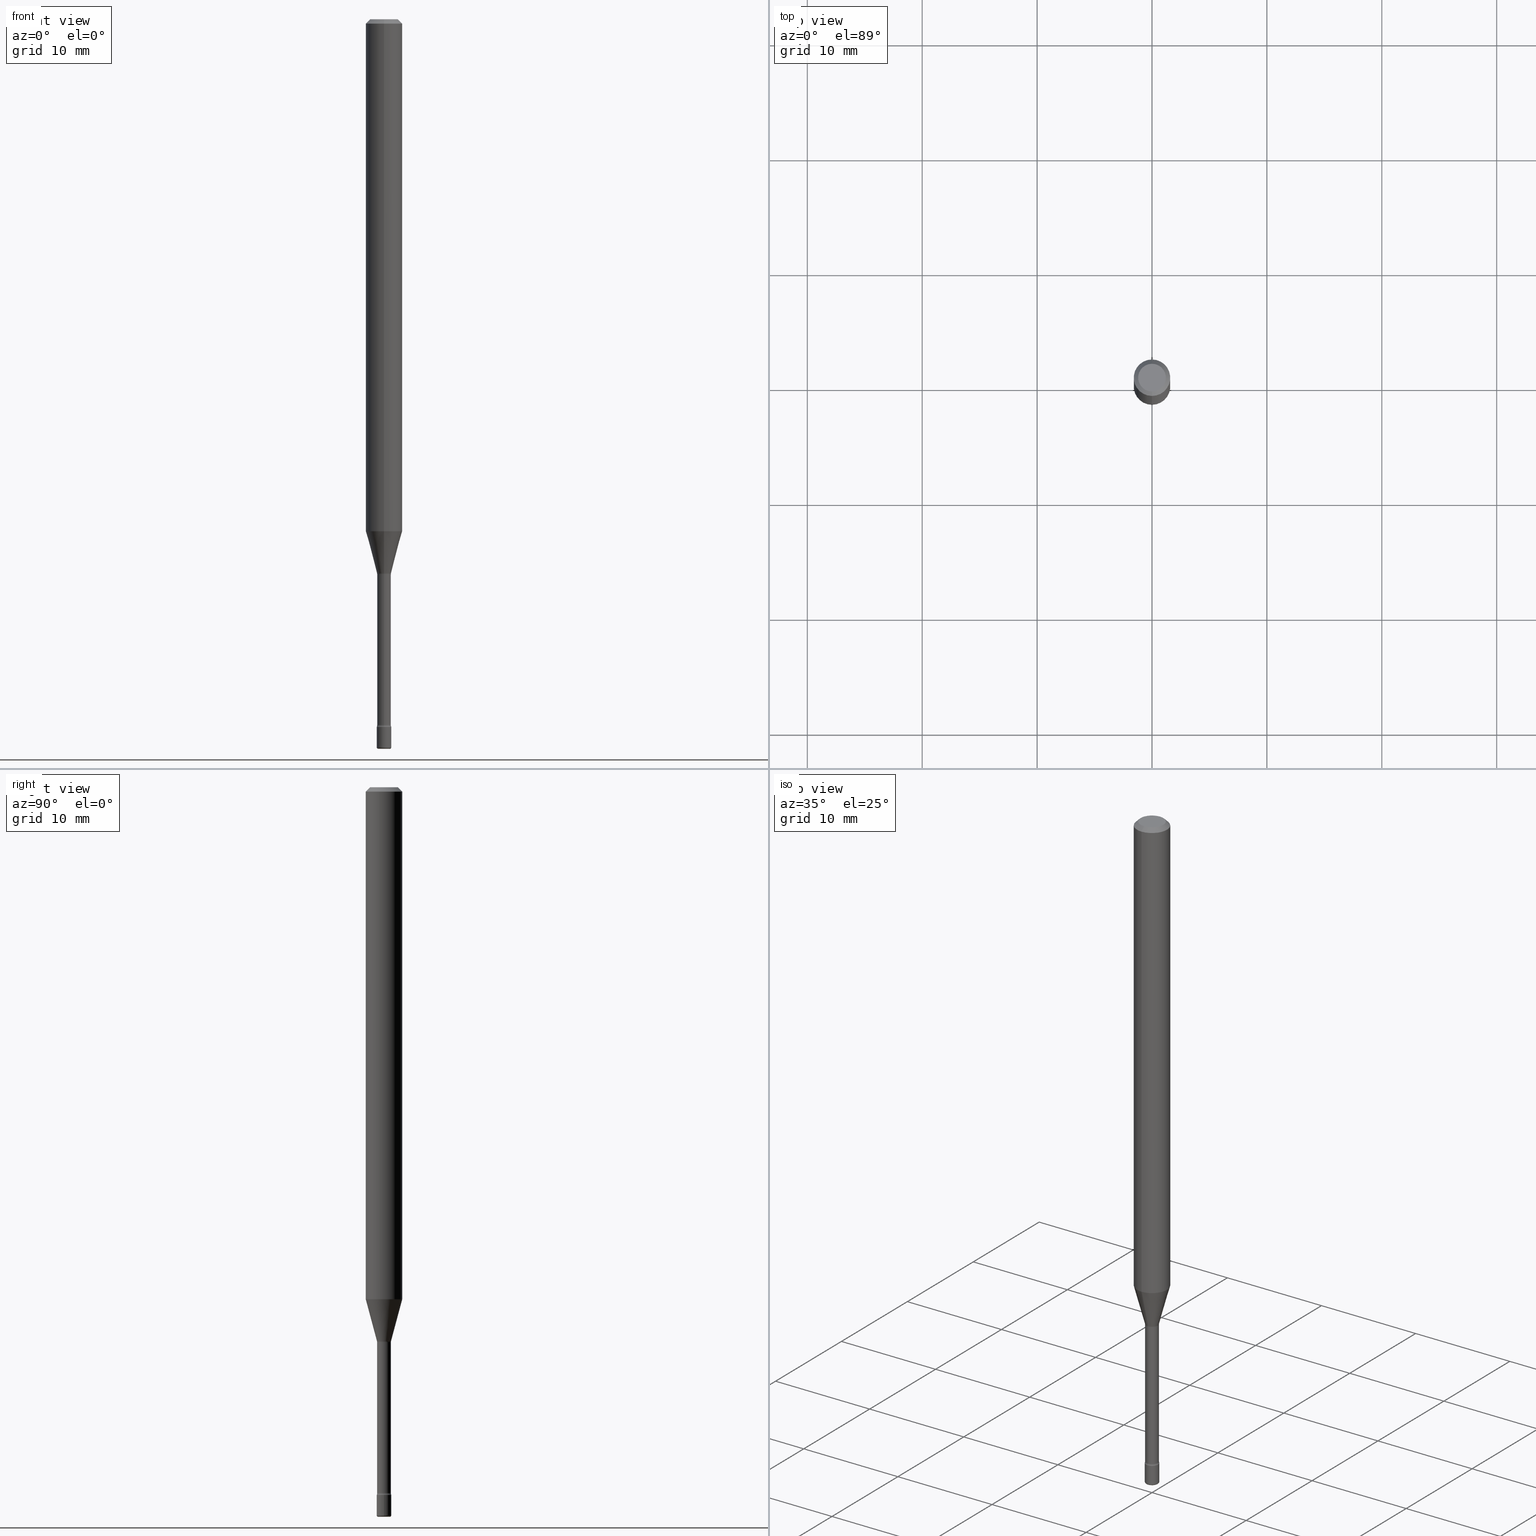
[diagram: canonical four-view strip — front | top / right | iso, engineering-drawing reading convention]
A machine part, canonical four-view strip (front | top / right | iso — engineering-drawing reading convention). The complete STEP part file that produces these views, byte-faithful:
ISO-10303-21;
HEADER;
FILE_DESCRIPTION (( 'STEP AP203' ),
    '1' );
FILE_NAME ('08916.STEP',
    '2024-03-06T20:10:56',
    ( '' ),
    ( '' ),
    'SwSTEP 2.0',
    'SolidWorks 2023',
    '' );
FILE_SCHEMA (( 'CONFIG_CONTROL_DESIGN' ));
ENDSEC;

DATA;
#1 = DIRECTION ( 'NONE',  ( -2.445468806185136597E-29, 3.491481338843145583E-15, 1.000000000000000000 ) ) ;
#2 = CYLINDRICAL_SURFACE ( 'NONE', #528, 0.02350000000000000352 ) ;
#3 = EDGE_CURVE ( 'NONE', #519, #570, #496, .T. ) ;
#4 = ORIENTED_EDGE ( 'NONE', *, *, #15, .F. ) ;
#5 = AXIS2_PLACEMENT_3D ( 'NONE', #243, #486, #402 ) ;
#6 = CC_DESIGN_APPROVAL ( #295, ( #188 ) ) ;
#7 = ORIENTED_EDGE ( 'NONE', *, *, #349, .T. ) ;
#8 = DIRECTION ( 'NONE',  ( -2.445403387377062590E-29, 3.491575022299715255E-15, 1.000000000000000000 ) ) ;
#9 = EDGE_CURVE ( 'NONE', #522, #378, #468, .T. ) ;
#10 = DIRECTION ( 'NONE',  ( 1.000000000000000000, -6.982962677686295110E-15, 0.000000000000000000 ) ) ;
#11 = CARTESIAN_POINT ( 'NONE',  ( 4.440892098501058063E-16, 0.06249999999999995143, -0.01500000000000024578 ) ) ;
#12 = EDGE_LOOP ( 'NONE', ( #173, #142 ) ) ;
#13 = CIRCLE ( 'NONE', #55, 0.04749999999999998668 ) ;
#15 = EDGE_CURVE ( 'NONE', #53, #182, #505, .T. ) ;
#14 = DIRECTION ( 'NONE',  ( 1.000000000000000000, -6.982962677686295110E-15, 0.000000000000000000 ) ) ;
#16 = VECTOR ( 'NONE', #331, 39.37007874015748143 ) ;
#17 = DIRECTION ( 'NONE',  ( -6.982962677686266711E-15, -1.000000000000000000, 3.491575022299714860E-15 ) ) ;
#18 = EDGE_CURVE ( 'NONE', #86, #570, #488, .T. ) ;
#19 = DIRECTION ( 'NONE',  ( -2.445403387377062590E-29, 3.491575022299714860E-15, 1.000000000000000000 ) ) ;
#20 = FACE_OUTER_BOUND ( 'NONE', #12, .T. ) ;
#21 = EDGE_CURVE ( 'NONE', #523, #519, #356, .T. ) ;
#22 = FACE_OUTER_BOUND ( 'NONE', #345, .T. ) ;
#23 = CARTESIAN_POINT ( 'NONE',  ( 6.101444671431915719E-29, -8.711245940413648329E-15, -2.495000000000000107 ) ) ;
#24 = APPLICATION_PROTOCOL_DEFINITION ( 'international standard', 'config_control_design', 1994, #183 ) ;
#25 = DATE_AND_TIME ( #45, #471 ) ;
#26 = CARTESIAN_POINT ( 'NONE',  ( 5.930103214389377510E-29, -8.467069429076808556E-15, -2.425000000000000266 ) ) ;
#27 = AXIS2_PLACEMENT_3D ( 'NONE', #262, #425, #40 ) ;
#28 = CC_DESIGN_APPROVAL ( #51, ( #398 ) ) ;
#29 = FACE_OUTER_BOUND ( 'NONE', #219, .T. ) ;
#30 = CC_DESIGN_DATE_AND_TIME_ASSIGNMENT ( #392, #477, ( #250 ) ) ;
#31 = PERSON_AND_ORGANIZATION ( #436, #497 ) ;
#32 = DIRECTION ( 'NONE',  ( 6.982962677686265922E-15, 1.000000000000000000, -3.483106191921935554E-15 ) ) ;
#33 = EDGE_CURVE ( 'NONE', #424, #59, #458, .T. ) ;
#34 = DIRECTION ( 'NONE',  ( -6.982962677686265922E-15, -1.000000000000000000, 0.000000000000000000 ) ) ;
#35 = CARTESIAN_POINT ( 'NONE',  ( 4.290338018235424187E-29, -6.125793862484683661E-15, -1.754450018504814635 ) ) ;
#36 = ORIENTED_EDGE ( 'NONE', *, *, #475, .F. ) ;
#37 = CARTESIAN_POINT ( 'NONE',  ( -4.287811248607203282E-16, -0.06250000000000005551, -0.01499999999999981036 ) ) ;
#38 = EDGE_LOOP ( 'NONE', ( #379, #44, #90, #36 ) ) ;
#39 = CARTESIAN_POINT ( 'NONE',  ( 1.706092163947695036E-16, 0.02401111260565735178, -1.898092501787273401 ) ) ;
#40 = DIRECTION ( 'NONE',  ( 1.000000000000000000, -6.982962677686265922E-15, 4.876176775795936353E-29 ) ) ;
#41 = MANIFOLD_SOLID_BREP ( 'Body-Move/Copy2[2]', #159 ) ;
#42 = PRODUCT ( '08916', '08916', '', ( #537 ) ) ;
#43 = ORIENTED_EDGE ( 'NONE', *, *, #111, .T. ) ;
#44 = ORIENTED_EDGE ( 'NONE', *, *, #410, .T. ) ;
#45 = CALENDAR_DATE ( 2024, 6, 3 ) ;
#46 = CIRCLE ( 'NONE', #403, 0.02499999999999999792 ) ;
#47 = TOROIDAL_SURFACE ( 'NONE', #288, 0.02000000000000000042, 0.005000000000000040870 ) ;
#48 = DIRECTION ( 'NONE',  ( -2.445468806185136597E-29, 3.491481338843145583E-15, 1.000000000000000000 ) ) ;
#49 = ORIENTED_EDGE ( 'NONE', *, *, #554, .F. ) ;
#50 = ORIENTED_EDGE ( 'NONE', *, *, #298, .T. ) ;
#51 = APPROVAL ( #137, 'UNSPECIFIED' ) ;
#52 = DIRECTION ( 'NONE',  ( -6.982962677686265922E-15, -1.000000000000000000, 3.491575022299715255E-15 ) ) ;
#53 = VERTEX_POINT ( 'NONE', #240 ) ;
#54 = PRODUCT_RELATED_PRODUCT_CATEGORY ( 'detail', '', ( #42 ) ) ;
#55 = AXIS2_PLACEMENT_3D ( 'NONE', #409, #283, #449 ) ;
#56 = AXIS2_PLACEMENT_3D ( 'NONE', #426, #266, #263 ) ;
#57 = CARTESIAN_POINT ( 'NONE',  ( 2.735589532676978805E-16, 0.03849999999999158956, -2.418461651584689065 ) ) ;
#58 = EDGE_CURVE ( 'NONE', #523, #86, #293, .T. ) ;
#59 = VERTEX_POINT ( 'NONE', #112 ) ;
#60 = AXIS2_PLACEMENT_3D ( 'NONE', #490, #107, #357 ) ;
#61 = DIRECTION ( 'NONE',  ( -6.982962677686265922E-15, -1.000000000000000000, 3.483106191921935554E-15 ) ) ;
#62 = LINE ( 'NONE', #455, #81 ) ;
#63 = CC_DESIGN_PERSON_AND_ORGANIZATION_ASSIGNMENT ( #146, #314, ( #398 ) ) ;
#64 = APPROVAL_DATE_TIME ( #209, #295 ) ;
#65 = ORIENTED_EDGE ( 'NONE', *, *, #464, .F. ) ;
#66 = FACE_OUTER_BOUND ( 'NONE', #311, .T. ) ;
#67 = EDGE_CURVE ( 'NONE', #222, #318, #236, .T. ) ;
#68 = DIRECTION ( 'NONE',  ( -2.445403387377062590E-29, 3.491575022299714860E-15, 1.000000000000000000 ) ) ;
#69 = ADVANCED_FACE ( 'NONE', ( #162 ), #535, .T. ) ;
#70 = AXIS2_PLACEMENT_3D ( 'NONE', #251, #334, #372 ) ;
#71 = APPROVAL_DATE_TIME ( #25, #51 ) ;
#72 = AXIS2_PLACEMENT_3D ( 'NONE', #26, #177, #121 ) ;
#73 = LOCAL_TIME ( 15, 10, 56.00000000000000000, #91 ) ;
#74 = DIRECTION ( 'NONE',  ( 1.000000000000000000, -7.105427357601001070E-15, 4.926316655833534240E-29 ) ) ;
#75 = DIRECTION ( 'NONE',  ( -6.982962677686265922E-15, -1.000000000000000000, 3.483106191921935554E-15 ) ) ;
#76 = DIRECTION ( 'NONE',  ( -6.982962677686265133E-15, -1.000000000000000000, 0.000000000000000000 ) ) ;
#77 = UNCERTAINTY_MEASURE_WITH_UNIT (LENGTH_MEASURE( 1.000000000000000082E-05 ), #338, 'distance_accuracy_value', 'NONE');
#78 = CARTESIAN_POINT ( 'NONE',  ( 3.840629472727447874E-16, 0.04749999999999998668, -1.929345507921888436E-16 ) ) ;
#79 = CARTESIAN_POINT ( 'NONE',  ( 6.113672015462842613E-29, -8.728703347107864943E-15, -2.500000000000000000 ) ) ;
#80 = ORIENTED_EDGE ( 'NONE', *, *, #444, .F. ) ;
#81 = VECTOR ( 'NONE', #324, 39.37007874015748143 ) ;
#82 = AXIS2_PLACEMENT_3D ( 'NONE', #320, #442, #14 ) ;
#83 = CARTESIAN_POINT ( 'NONE',  ( -1.169113584055446105E-44, 1.669184350826100908E-30, 4.780733988912460139E-16 ) ) ;
#84 = LOCAL_TIME ( 15, 10, 56.00000000000000000, #109 ) ;
#85 = FACE_OUTER_BOUND ( 'NONE', #38, .T. ) ;
#86 = VERTEX_POINT ( 'NONE', #199 ) ;
#87 = SHAPE_DEFINITION_REPRESENTATION ( #139, #165 ) ;
#88 = ORIENTED_EDGE ( 'NONE', *, *, #475, .T. ) ;
#89 = CARTESIAN_POINT ( 'NONE',  ( 4.651220012893355916E-29, -6.640709477380055554E-15, -1.901974787463811323 ) ) ;
#90 = ORIENTED_EDGE ( 'NONE', *, *, #58, .F. ) ;
#92 = ADVANCED_FACE ( 'NONE', ( #197 ), #397, .F. ) ;
#91 = COORDINATED_UNIVERSAL_TIME_OFFSET ( 5, 0, .BEHIND. ) ;
#93 = ORIENTED_EDGE ( 'NONE', *, *, #432, .T. ) ;
#94 = ORIENTED_EDGE ( 'NONE', *, *, #254, .T. ) ;
#95 = SECURITY_CLASSIFICATION_LEVEL ( 'unclassified' ) ;
#96 = ORIENTED_EDGE ( 'NONE', *, *, #298, .F. ) ;
#97 = EDGE_CURVE ( 'NONE', #182, #53, #46, .T. ) ;
#98 = AXIS2_PLACEMENT_3D ( 'NONE', #450, #19, #205 ) ;
#99 = CARTESIAN_POINT ( 'NONE',  ( 1.745740669422159556E-16, 0.02499999999999153247, -2.425000000000000266 ) ) ;
#100 = ORIENTED_EDGE ( 'NONE', *, *, #9, .T. ) ;
#101 = CALENDAR_DATE ( 2024, 6, 3 ) ;
#102 = EDGE_LOOP ( 'NONE', ( #303, #307, #4, #216 ) ) ;
#103 = EDGE_CURVE ( 'NONE', #473, #175, #373, .T. ) ;
#104 = AXIS2_PLACEMENT_3D ( 'NONE', #289, #363, #546 ) ;
#105 = TOROIDAL_SURFACE ( 'NONE', #452, 0.03850000000000002726, 0.01500000000000003067 ) ;
#106 = CARTESIAN_POINT ( 'NONE',  ( -4.364351673553916201E-16, -0.06250000000000000000, 6.962968377849783406E-16 ) ) ;
#107 = DIRECTION ( 'NONE',  ( -2.445403387377062590E-29, 3.491575022299714860E-15, 1.000000000000000000 ) ) ;
#108 = CARTESIAN_POINT ( 'NONE',  ( -1.745740669420974785E-16, -0.02500000000000848419, -2.425000000000000266 ) ) ;
#109 = COORDINATED_UNIVERSAL_TIME_OFFSET ( 5, 0, .BEHIND. ) ;
#110 = DIRECTION ( 'NONE',  ( -2.445403387377062590E-29, 3.491575022299715255E-15, 1.000000000000000000 ) ) ;
#111 = EDGE_CURVE ( 'NONE', #53, #59, #62, .T. ) ;
#112 = CARTESIAN_POINT ( 'NONE',  ( 0.02500000000000000139, -8.641416313636785031E-15, -2.425000000000000266 ) ) ;
#113 = AXIS2_PLACEMENT_3D ( 'NONE', #541, #370, #544 ) ;
#114 = DIRECTION ( 'NONE',  ( -2.438088387897960049E-29, 3.491481338843145188E-15, 1.000000000000000000 ) ) ;
#115 = DIRECTION ( 'NONE',  ( 1.000000000000000000, -7.105427357601001070E-15, 4.926316655833534240E-29 ) ) ;
#116 = ADVANCED_FACE ( 'NONE', ( #362 ), #158, .T. ) ;
#117 = APPROVAL_STATUS ( 'not_yet_approved' ) ;
#118 = CARTESIAN_POINT ( 'NONE',  ( 5.914114315026723309E-29, -8.444240295062814699E-15, -2.418461651584689065 ) ) ;
#119 = PERSON_AND_ORGANIZATION_ROLE ( 'creator' ) ;
#120 = AXIS2_PLACEMENT_3D ( 'NONE', #453, #498, #548 ) ;
#121 = DIRECTION ( 'NONE',  ( -6.982962677686265133E-15, -1.000000000000000000, 0.000000000000000000 ) ) ;
#122 = AXIS2_PLACEMENT_3D ( 'NONE', #504, #461, #75 ) ;
#123 = CARTESIAN_POINT ( 'NONE',  ( 4.641601833425601729E-29, -6.627332369254820611E-15, -1.898092501787273401 ) ) ;
#124 = ADVANCED_FACE ( 'NONE', ( #20 ), #282, .T. ) ;
#125 = CARTESIAN_POINT ( 'NONE',  ( -0.02500000000000000139, -8.411408409614115509E-15, -2.425000000000000266 ) ) ;
#126 = FACE_OUTER_BOUND ( 'NONE', #466, .T. ) ;
#127 = ORIENTED_EDGE ( 'NONE', *, *, #280, .T. ) ;
#128 = EDGE_CURVE ( 'NONE', #376, #391, #201, .T. ) ;
#129 = DIRECTION ( 'NONE',  ( -6.982962677686267499E-15, -1.000000000000000000, 0.000000000000000000 ) ) ;
#130 = PLANE ( 'NONE',  #423 ) ;
#131 = ORIENTED_EDGE ( 'NONE', *, *, #361, .F. ) ;
#132 = ORIENTED_EDGE ( 'NONE', *, *, #319, .F. ) ;
#133 = AXIS2_PLACEMENT_3D ( 'NONE', #35, #336, #509 ) ;
#134 = DIRECTION ( 'NONE',  ( -6.982962677686265133E-15, -1.000000000000000000, 0.000000000000000000 ) ) ;
#135 = CARTESIAN_POINT ( 'NONE',  ( 5.930103214389377510E-29, -8.467069429076808556E-15, -2.425000000000000266 ) ) ;
#136 = EDGE_LOOP ( 'NONE', ( #143, #259, #88, #325 ) ) ;
#137 = APPROVAL_STATUS ( 'not_yet_approved' ) ;
#138 = APPROVAL ( #117, 'UNSPECIFIED' ) ;
#139 = PRODUCT_DEFINITION_SHAPE ( 'NONE', 'NONE',  #188 ) ;
#140 = CARTESIAN_POINT ( 'NONE',  ( -4.364351673553912750E-16, -0.06250000000000005551, -0.01499999999999981036 ) ) ;
#141 = ADVANCED_FACE ( 'NONE', ( #400 ), #245, .F. ) ;
#142 = ORIENTED_EDGE ( 'NONE', *, *, #33, .T. ) ;
#143 = ORIENTED_EDGE ( 'NONE', *, *, #410, .F. ) ;
#144 = DIRECTION ( 'NONE',  ( -2.445403387377062590E-29, 3.491575022299714860E-15, 1.000000000000000000 ) ) ;
#145 = ORIENTED_EDGE ( 'NONE', *, *, #439, .T. ) ;
#146 = PERSON_AND_ORGANIZATION ( #436, #497 ) ;
#147 = CONICAL_SURFACE ( 'NONE', #451, 0.02401111260566398189, 0.2617993877991502960 ) ;
#148 = VECTOR ( 'NONE', #169, 39.37007874015748143 ) ;
#149 = FACE_OUTER_BOUND ( 'NONE', #495, .T. ) ;
#150 = APPLICATION_PROTOCOL_DEFINITION ( 'international standard', 'config_control_design', 1994, #210 ) ;
#151 = DIRECTION ( 'NONE',  ( 1.000000000000000000, -6.982962677686282488E-15, 4.883557194083118506E-29 ) ) ;
#152 = AXIS2_PLACEMENT_3D ( 'NONE', #557, #258, #553 ) ;
#153 = AXIS2_PLACEMENT_3D ( 'NONE', #99, #273, #52 ) ;
#154 = DIRECTION ( 'NONE',  ( 1.000000000000000000, -6.982962677686282488E-15, 4.883557194083118506E-29 ) ) ;
#155 = CC_DESIGN_PERSON_AND_ORGANIZATION_ASSIGNMENT ( #31, #119, ( #188 ) ) ;
#156 = ORIENTED_EDGE ( 'NONE', *, *, #241, .F. ) ;
#157 = DIRECTION ( 'NONE',  ( -6.982962677686265922E-15, -1.000000000000000000, 0.000000000000000000 ) ) ;
#158 = CYLINDRICAL_SURFACE ( 'NONE', #358, 0.02499999999999999792 ) ;
#159 = CLOSED_SHELL ( 'NONE', ( #92, #536, #141, #223, #230, #508, #215, #69, #417, #234, #533, #484, #315, #529 ) ) ;
#160 = FACE_OUTER_BOUND ( 'NONE', #310, .T. ) ;
#161 = CIRCLE ( 'NONE', #279, 0.02401111260566398189 ) ;
#162 = FACE_OUTER_BOUND ( 'NONE', #472, .T. ) ;
#163 = APPROVAL_PERSON_ORGANIZATION ( #457, #51, #366 ) ;
#164 = CARTESIAN_POINT ( 'NONE',  ( 5.930261854998957144E-29, -8.466842246694628363E-15, -2.425000000000000266 ) ) ;
#165 = ADVANCED_BREP_SHAPE_REPRESENTATION ( '08916', ( #221, #41, #483 ), #443 ) ;
#166 = DATE_AND_TIME ( #569, #73 ) ;
#167 = CARTESIAN_POINT ( 'NONE',  ( 1.669775429036235194E-16, 0.02350000000000000352, 3.960213858672027518E-16 ) ) ;
#168 = FACE_OUTER_BOUND ( 'NONE', #136, .T. ) ;
#169 = DIRECTION ( 'NONE',  ( -2.445403387377062590E-29, 3.491575022299715255E-15, 1.000000000000000000 ) ) ;
#170 = CARTESIAN_POINT ( 'NONE',  ( -1.640996229256272766E-16, -0.02350000000000000352, 5.601254119152893254E-16 ) ) ;
#171 = CIRCLE ( 'NONE', #556, 0.01500000000000001853 ) ;
#172 = DIRECTION ( 'NONE',  ( -2.445403387377062590E-29, 3.491575022299714860E-15, 1.000000000000000000 ) ) ;
#173 = ORIENTED_EDGE ( 'NONE', *, *, #531, .T. ) ;
#174 = LENGTH_MEASURE_WITH_UNIT ( LENGTH_MEASURE( 0.02539999999999999897 ), #374 );
#175 = VERTEX_POINT ( 'NONE', #540 ) ;
#176 = ADVANCED_FACE ( 'NONE', ( #543 ), #302, .T. ) ;
#177 = DIRECTION ( 'NONE',  ( -2.445403387377062590E-29, 3.491575022299714860E-15, 1.000000000000000000 ) ) ;
#178 = LINE ( 'NONE', #37, #246 ) ;
#179 = ORIENTED_EDGE ( 'NONE', *, *, #3, .F. ) ;
#180 = DIRECTION ( 'NONE',  ( 1.000000000000000000, -6.982962677686284065E-15, 0.000000000000000000 ) ) ;
#181 = FACE_OUTER_BOUND ( 'NONE', #520, .T. ) ;
#182 = VERTEX_POINT ( 'NONE', #492 ) ;
#183 = APPLICATION_CONTEXT ( 'configuration controlled 3d designs of mechanical parts and assemblies' ) ;
#184 = ORIENTED_EDGE ( 'NONE', *, *, #97, .F. ) ;
#185 = AXIS2_PLACEMENT_3D ( 'NONE', #23, #291, #154 ) ;
#186 = CIRCLE ( 'NONE', #304, 0.02500000000000000139 ) ;
#187 = CARTESIAN_POINT ( 'NONE',  ( 1.776356839400844428E-16, 0.02499999999999155328, -2.425000000000000266 ) ) ;
#188 = PRODUCT_DEFINITION ( 'UNKNOWN', '', #398, #252 ) ;
#189 = EDGE_LOOP ( 'NONE', ( #233, #145, #274, #156 ) ) ;
#190 = ORIENTED_EDGE ( 'NONE', *, *, #103, .F. ) ;
#191 = DIRECTION ( 'NONE',  ( -2.445403387377062590E-29, 3.491575022299714860E-15, 1.000000000000000000 ) ) ;
#192 = AXIS2_PLACEMENT_3D ( 'NONE', #456, #68, #494 ) ;
#193 = CIRCLE ( 'NONE', #322, 0.02500000000000000139 ) ;
#194 = ORIENTED_EDGE ( 'NONE', *, *, #277, .T. ) ;
#195 = VERTEX_POINT ( 'NONE', #108 ) ;
#196 = EDGE_CURVE ( 'NONE', #175, #473, #13, .T. ) ;
#197 = FACE_OUTER_BOUND ( 'NONE', #267, .T. ) ;
#198 = CARTESIAN_POINT ( 'NONE',  ( 0.000000000000000000, 0.000000000000000000, 0.000000000000000000 ) ) ;
#199 = CARTESIAN_POINT ( 'NONE',  ( 4.440892098501052147E-16, 0.06249999999999384520, -1.754450018504814857 ) ) ;
#200 = EDGE_CURVE ( 'NONE', #476, #435, #171, .T. ) ;
#201 = CIRCLE ( 'NONE', #480, 0.01500000000000002720 ) ;
#202 = AXIS2_PLACEMENT_3D ( 'NONE', #257, #502, #32 ) ;
#203 = ORIENTED_EDGE ( 'NONE', *, *, #361, .T. ) ;
#204 = COORDINATED_UNIVERSAL_TIME_OFFSET ( 5, 0, .BEHIND. ) ;
#205 = DIRECTION ( 'NONE',  ( -6.982962677686265922E-15, -1.000000000000000000, 4.370956789862821150E-15 ) ) ;
#206 = DIRECTION ( 'NONE',  ( 7.105427357601001859E-15, 1.000000000000000000, 0.000000000000000000 ) ) ;
#207 = AXIS2_PLACEMENT_3D ( 'NONE', #405, #360, #17 ) ;
#208 = LOCAL_TIME ( 15, 10, 56.00000000000000000, #204 ) ;
#209 = DATE_AND_TIME ( #414, #208 ) ;
#210 = APPLICATION_CONTEXT ( 'configuration controlled 3d designs of mechanical parts and assemblies' ) ;
#211 = PERSON_AND_ORGANIZATION_ROLE ( 'creator' ) ;
#212 = DIRECTION ( 'NONE',  ( -2.445403387377062590E-29, 3.491575022299715255E-15, 1.000000000000000000 ) ) ;
#213 = CARTESIAN_POINT ( 'NONE',  ( -0.02000000000000000042, -8.560102528214734347E-15, -2.500000000000000000 ) ) ;
#214 = PLANE ( 'NONE',  #517 ) ;
#215 = ADVANCED_FACE ( 'NONE', ( #168 ), #147, .T. ) ;
#216 = ORIENTED_EDGE ( 'NONE', *, *, #280, .F. ) ;
#217 = CONICAL_SURFACE ( 'NONE', #202, 0.06250000000000000000, 0.7853981633974485010 ) ;
#218 = CARTESIAN_POINT ( 'NONE',  ( -2.688440630908622951E-16, -0.03850000000000847189, -2.418461651584689065 ) ) ;
#219 = EDGE_LOOP ( 'NONE', ( #355, #278, #179, #396 ) ) ;
#220 = CARTESIAN_POINT ( 'NONE',  ( 1.723066134218835880E-16, 0.02349999999999155889, -2.418461651584689065 ) ) ;
#221 = MANIFOLD_SOLID_BREP ( 'Body-Move/Copy2[1]', #335 ) ;
#222 = VERTEX_POINT ( 'NONE', #369 ) ;
#223 = ADVANCED_FACE ( 'NONE', ( #255 ), #411, .T. ) ;
#224 = CARTESIAN_POINT ( 'NONE',  ( 5.930261854998957144E-29, -8.466842246694628363E-15, -2.425000000000000266 ) ) ;
#225 = ORIENTED_EDGE ( 'NONE', *, *, #327, .T. ) ;
#226 = AXIS2_PLACEMENT_3D ( 'NONE', #281, #285, #445 ) ;
#227 = AXIS2_PLACEMENT_3D ( 'NONE', #228, #381, #390 ) ;
#228 = CARTESIAN_POINT ( 'NONE',  ( 4.651095587969773303E-29, -6.640887660952452658E-15, -1.901974787463811323 ) ) ;
#229 = ORIENTED_EDGE ( 'NONE', *, *, #439, .F. ) ;
#230 = ADVANCED_FACE ( 'NONE', ( #29 ), #512, .T. ) ;
#231 = EDGE_LOOP ( 'NONE', ( #96, #431, #43, #542 ) ) ;
#232 = FACE_OUTER_BOUND ( 'NONE', #189, .T. ) ;
#233 = ORIENTED_EDGE ( 'NONE', *, *, #554, .T. ) ;
#234 = ADVANCED_FACE ( 'NONE', ( #126 ), #214, .F. ) ;
#235 = ORIENTED_EDGE ( 'NONE', *, *, #317, .T. ) ;
#236 = CIRCLE ( 'NONE', #104, 0.02000000000000000042 ) ;
#237 = CC_DESIGN_APPROVAL ( #138, ( #250 ) ) ;
#238 = DIRECTION ( 'NONE',  ( 1.000000000000000000, 0.000000000000000000, 0.000000000000000000 ) ) ;
#239 = ORIENTED_EDGE ( 'NONE', *, *, #128, .T. ) ;
#240 = CARTESIAN_POINT ( 'NONE',  ( 0.02500000000000001874, -8.885820007355804997E-15, -2.495000000000000551 ) ) ;
#241 = EDGE_CURVE ( 'NONE', #393, #378, #474, .T. ) ;
#242 = DIRECTION ( 'NONE',  ( -2.445468806185136597E-29, 3.491481338843145583E-15, 1.000000000000000000 ) ) ;
#243 = CARTESIAN_POINT ( 'NONE',  ( -2.688440630908746703E-16, -0.03850000000000664002, -1.901974787463811323 ) ) ;
#244 = CARTESIAN_POINT ( 'NONE',  ( 2.735589532676850122E-16, 0.03849999999999335204, -1.901974787463811323 ) ) ;
#245 = TOROIDAL_SURFACE ( 'NONE', #207, 0.03850000000000002726, 0.01500000000000003067 ) ;
#246 = VECTOR ( 'NONE', #301, 39.37007874015748143 ) ;
#247 = CARTESIAN_POINT ( 'NONE',  ( 4.641601833425601729E-29, -6.627332369254820611E-15, -1.898092501787273401 ) ) ;
#248 = CIRCLE ( 'NONE', #565, 0.02000000000000000042 ) ;
#249 = CIRCLE ( 'NONE', #122, 0.06250000000000000000 ) ;
#250 = SECURITY_CLASSIFICATION ( '', '', #95 ) ;
#251 = CARTESIAN_POINT ( 'NONE',  ( 4.651095587969773303E-29, -6.640887660952452658E-15, -1.901974787463811323 ) ) ;
#252 = DESIGN_CONTEXT ( 'detailed design', #210, 'design' ) ;
#253 = CALENDAR_DATE ( 2024, 6, 3 ) ;
#254 = EDGE_CURVE ( 'NONE', #318, #222, #248, .T. ) ;
#255 = FACE_OUTER_BOUND ( 'NONE', #514, .T. ) ;
#256 = LINE ( 'NONE', #419, #547 ) ;
#257 = CARTESIAN_POINT ( 'NONE',  ( 3.668105081065600506E-31, -5.237362533449582250E-17, -0.01500000000000002720 ) ) ;
#258 = DIRECTION ( 'NONE',  ( -6.982962677686266711E-15, -1.000000000000000000, 3.491481338843145583E-15 ) ) ;
#259 = ORIENTED_EDGE ( 'NONE', *, *, #319, .T. ) ;
#260 = AXIS2_PLACEMENT_3D ( 'NONE', #447, #493, #61 ) ;
#261 = APPROVAL_PERSON_ORGANIZATION ( #290, #295, #371 ) ;
#262 = CARTESIAN_POINT ( 'NONE',  ( 0.000000000000000000, 0.000000000000000000, 0.000000000000000000 ) ) ;
#263 = DIRECTION ( 'NONE',  ( -6.982962677686265133E-15, -1.000000000000000000, 0.000000000000000000 ) ) ;
#264 = ORIENTED_EDGE ( 'NONE', *, *, #200, .T. ) ;
#265 = DIMENSIONAL_EXPONENTS ( 1.000000000000000000, 0.000000000000000000, 0.000000000000000000, 0.000000000000000000, 0.000000000000000000, 0.000000000000000000, 0.000000000000000000 ) ;
#266 = DIRECTION ( 'NONE',  ( -2.445403387377062590E-29, 3.491575022299714860E-15, 1.000000000000000000 ) ) ;
#267 = EDGE_LOOP ( 'NONE', ( #132, #264, #407, #429 ) ) ;
#268 = FACE_OUTER_BOUND ( 'NONE', #102, .T. ) ;
#269 = ORIENTED_EDGE ( 'NONE', *, *, #349, .F. ) ;
#270 = AXIS2_PLACEMENT_3D ( 'NONE', #89, #191, #478 ) ;
#271 = LINE ( 'NONE', #39, #16 ) ;
#272 = CC_DESIGN_SECURITY_CLASSIFICATION ( #250, ( #398 ) ) ;
#273 = DIRECTION ( 'NONE',  ( -2.445403387377062030E-29, 3.491575022299715255E-15, 1.000000000000000000 ) ) ;
#274 = ORIENTED_EDGE ( 'NONE', *, *, #277, .F. ) ;
#275 = PERSON_AND_ORGANIZATION ( #436, #497 ) ;
#276 = PERSON_AND_ORGANIZATION ( #436, #497 ) ;
#277 = EDGE_CURVE ( 'NONE', #378, #435, #321, .T. ) ;
#278 = ORIENTED_EDGE ( 'NONE', *, *, #18, .T. ) ;
#279 = AXIS2_PLACEMENT_3D ( 'NONE', #123, #377, #76 ) ;
#280 = EDGE_CURVE ( 'NONE', #222, #53, #385, .T. ) ;
#281 = CARTESIAN_POINT ( 'NONE',  ( 5.930261854998957144E-29, -8.466842246694628363E-15, -2.425000000000000266 ) ) ;
#282 = PLANE ( 'NONE',  #434 ) ;
#283 = DIRECTION ( 'NONE',  ( -2.445403387377062590E-29, 3.491575022299714860E-15, 1.000000000000000000 ) ) ;
#284 = DATE_AND_TIME ( #253, #84 ) ;
#285 = DIRECTION ( 'NONE',  ( -2.445468806185136597E-29, 3.491481338843145583E-15, 1.000000000000000000 ) ) ;
#286 = CARTESIAN_POINT ( 'NONE',  ( 6.101444671431917961E-29, -8.711245940413649907E-15, -2.495000000000000551 ) ) ;
#287 = AXIS2_PLACEMENT_3D ( 'NONE', #368, #297, #340 ) ;
#288 = AXIS2_PLACEMENT_3D ( 'NONE', #438, #1, #151 ) ;
#289 = CARTESIAN_POINT ( 'NONE',  ( 6.113672015462842613E-29, -8.728703347107864943E-15, -2.500000000000000000 ) ) ;
#290 = PERSON_AND_ORGANIZATION ( #436, #497 ) ;
#291 = DIRECTION ( 'NONE',  ( -2.445468806185136597E-29, 3.491481338843145583E-15, 1.000000000000000000 ) ) ;
#292 = FACE_OUTER_BOUND ( 'NONE', #386, .T. ) ;
#293 = CIRCLE ( 'NONE', #98, 0.06250000000000000000 ) ;
#294 = AXIS2_PLACEMENT_3D ( 'NONE', #118, #418, #34 ) ;
#295 = APPROVAL ( #500, 'UNSPECIFIED' ) ;
#296 = DIRECTION ( 'NONE',  ( 6.982962677686265922E-15, 1.000000000000000000, -3.491575022299715255E-15 ) ) ;
#297 = DIRECTION ( 'NONE',  ( 2.445403387377062590E-29, -3.491575022299714860E-15, -1.000000000000000000 ) ) ;
#298 = EDGE_CURVE ( 'NONE', #182, #424, #332, .T. ) ;
#299 = CARTESIAN_POINT ( 'NONE',  ( 4.364351673553919652E-16, 0.06249999999999995143, -0.01500000000000024578 ) ) ;
#300 = EDGE_LOOP ( 'NONE', ( #525, #50, #454, #350 ) ) ;
#301 = DIRECTION ( 'NONE',  ( -4.851104656540965064E-15, -0.7071067811865501263, -0.7071067811865449082 ) ) ;
#302 = TOROIDAL_SURFACE ( 'NONE', #185, 0.02000000000000000042, 0.005000000000000040870 ) ;
#303 = ORIENTED_EDGE ( 'NONE', *, *, #67, .T. ) ;
#304 = AXIS2_PLACEMENT_3D ( 'NONE', #135, #144, #527 ) ;
#305 = ORIENTED_EDGE ( 'NONE', *, *, #444, .T. ) ;
#306 = DIRECTION ( 'NONE',  ( -2.445403387377062590E-29, 3.491575022299714860E-15, 1.000000000000000000 ) ) ;
#307 = ORIENTED_EDGE ( 'NONE', *, *, #491, .T. ) ;
#308 = CARTESIAN_POINT ( 'NONE',  ( -4.364351673553489230E-16, -0.06250000000000614786, -1.754450018504814190 ) ) ;
#309 = ORIENTED_EDGE ( 'NONE', *, *, #128, .F. ) ;
#310 = EDGE_LOOP ( 'NONE', ( #309, #49, #203, #383 ) ) ;
#311 = EDGE_LOOP ( 'NONE', ( #269, #190, #326, #305 ) ) ;
#312 = PLANE ( 'NONE',  #153 ) ;
#313 = ORIENTED_EDGE ( 'NONE', *, *, #448, .F. ) ;
#314 = PERSON_AND_ORGANIZATION_ROLE ( 'design_supplier' ) ;
#315 = ADVANCED_FACE ( 'NONE', ( #292 ), #506, .T. ) ;
#316 = DIRECTION ( 'NONE',  ( -2.445403387377062590E-29, 3.491575022299714860E-15, 1.000000000000000000 ) ) ;
#317 = EDGE_CURVE ( 'NONE', #376, #393, #539, .T. ) ;
#318 = VERTEX_POINT ( 'NONE', #213 ) ;
#319 = EDGE_CURVE ( 'NONE', #476, #522, #161, .T. ) ;
#320 = CARTESIAN_POINT ( 'NONE',  ( 6.101444671431917961E-29, -8.711245940413649907E-15, -2.495000000000000551 ) ) ;
#321 = CIRCLE ( 'NONE', #70, 0.02350000000000000352 ) ;
#322 = AXIS2_PLACEMENT_3D ( 'NONE', #224, #48, #571 ) ;
#323 = DIRECTION ( 'NONE',  ( -2.445468806185136597E-29, 3.491481338843145583E-15, 1.000000000000000000 ) ) ;
#324 = DIRECTION ( 'NONE',  ( -2.445468806185136877E-29, 3.491481338843145188E-15, 1.000000000000000000 ) ) ;
#325 = ORIENTED_EDGE ( 'NONE', *, *, #327, .F. ) ;
#326 = ORIENTED_EDGE ( 'NONE', *, *, #464, .T. ) ;
#327 = EDGE_CURVE ( 'NONE', #86, #523, #346, .T. ) ;
#328 = CARTESIAN_POINT ( 'NONE',  ( 0.000000000000000000, 0.000000000000000000, 0.000000000000000000 ) ) ;
#329 = VECTOR ( 'NONE', #110, 39.37007874015748143 ) ;
#330 = CARTESIAN_POINT ( 'NONE',  ( 5.914272527905343055E-29, -8.444013725215714647E-15, -2.418461651584689065 ) ) ;
#331 = DIRECTION ( 'NONE',  ( 1.839019923739601104E-15, 0.2588190451025250693, 0.9659258262890670910 ) ) ;
#332 = LINE ( 'NONE', #416, #538 ) ;
#333 = CC_DESIGN_PERSON_AND_ORGANIZATION_ASSIGNMENT ( #276, #532, ( #42 ) ) ;
#334 = DIRECTION ( 'NONE',  ( -2.445403387377062590E-29, 3.491575022299714860E-15, 1.000000000000000000 ) ) ;
#335 = CLOSED_SHELL ( 'NONE', ( #116, #394, #124, #485, #176, #367 ) ) ;
#336 = DIRECTION ( 'NONE',  ( -2.445403387377062590E-29, 3.491575022299714860E-15, 1.000000000000000000 ) ) ;
#337 = DIRECTION ( 'NONE',  ( -1.807323732225330928E-15, -0.2588190451025182970, 0.9659258262890689783 ) ) ;
#338 =( CONVERSION_BASED_UNIT ( 'INCH', #174 ) LENGTH_UNIT ( ) NAMED_UNIT ( #265 ) );
#339 = ORIENTED_EDGE ( 'NONE', *, *, #513, .F. ) ;
#340 = DIRECTION ( 'NONE',  ( 6.982962677686265922E-15, 1.000000000000000000, -3.483106191921935554E-15 ) ) ;
#341 = ORIENTED_EDGE ( 'NONE', *, *, #317, .F. ) ;
#342 = PERSON_AND_ORGANIZATION ( #436, #497 ) ;
#343 = ORIENTED_EDGE ( 'NONE', *, *, #18, .F. ) ;
#344 = FACE_OUTER_BOUND ( 'NONE', #231, .T. ) ;
#345 = EDGE_LOOP ( 'NONE', ( #511, #440 ) ) ;
#346 = CIRCLE ( 'NONE', #133, 0.06250000000000000000 ) ;
#347 = DIRECTION ( 'NONE',  ( 2.438088387897960049E-29, -3.491481338843145188E-15, -1.000000000000000000 ) ) ;
#348 = ORIENTED_EDGE ( 'NONE', *, *, #196, .T. ) ;
#349 = EDGE_CURVE ( 'NONE', #175, #519, #178, .T. ) ;
#350 = ORIENTED_EDGE ( 'NONE', *, *, #111, .F. ) ;
#351 = APPROVAL_DATE_TIME ( #166, #138 ) ;
#352 = DIRECTION ( 'NONE',  ( 0.000000000000000000, 0.000000000000000000, 1.000000000000000000 ) ) ;
#353 = DIRECTION ( 'NONE',  ( -6.982962677686265922E-15, -1.000000000000000000, 3.491575022299714466E-15 ) ) ;
#354 = CARTESIAN_POINT ( 'NONE',  ( -1.169113584055446105E-44, 1.669184350826100908E-30, 4.780733988912460139E-16 ) ) ;
#355 = ORIENTED_EDGE ( 'NONE', *, *, #58, .T. ) ;
#356 = LINE ( 'NONE', #106, #329 ) ;
#357 = DIRECTION ( 'NONE',  ( -6.982962677686265133E-15, -1.000000000000000000, 3.491575022299714860E-15 ) ) ;
#358 = AXIS2_PLACEMENT_3D ( 'NONE', #328, #323, #408 ) ;
#359 = TOROIDAL_SURFACE ( 'NONE', #270, 0.03849999999999999256, 0.01500000000000001853 ) ;
#360 = DIRECTION ( 'NONE',  ( -2.445403387377062590E-29, 3.491575022299714860E-15, 1.000000000000000000 ) ) ;
#361 = EDGE_CURVE ( 'NONE', #393, #195, #460, .T. ) ;
#362 = FACE_OUTER_BOUND ( 'NONE', #300, .T. ) ;
#363 = DIRECTION ( 'NONE',  ( -2.445468806185136597E-29, 3.491481338843145583E-15, 1.000000000000000000 ) ) ;
#364 = AXIS2_PLACEMENT_3D ( 'NONE', #83, #306, #465 ) ;
#365 = CIRCLE ( 'NONE', #387, 0.02350000000000000352 ) ;
#366 = APPROVAL_ROLE ( '' ) ;
#367 = ADVANCED_FACE ( 'NONE', ( #344 ), #467, .T. ) ;
#368 = CARTESIAN_POINT ( 'NONE',  ( 3.668105081065600506E-31, -5.237362533449582250E-17, -0.01500000000000002720 ) ) ;
#369 = CARTESIAN_POINT ( 'NONE',  ( 0.02000000000000000042, -8.868362600661589961E-15, -2.500000000000000000 ) ) ;
#370 = DIRECTION ( 'NONE',  ( -2.445403387377062590E-29, 3.491575022299714860E-15, 1.000000000000000000 ) ) ;
#371 = APPROVAL_ROLE ( '' ) ;
#372 = DIRECTION ( 'NONE',  ( -6.982962677686265922E-15, -1.000000000000000000, 0.000000000000000000 ) ) ;
#373 = CIRCLE ( 'NONE', #60, 0.04749999999999998668 ) ;
#374 =( LENGTH_UNIT ( ) NAMED_UNIT ( * ) SI_UNIT ( $, .METRE. ) );
#375 = CIRCLE ( 'NONE', #72, 0.02500000000000000139 ) ;
#376 = VERTEX_POINT ( 'NONE', #220 ) ;
#377 = DIRECTION ( 'NONE',  ( -2.445403387377062590E-29, 3.491575022299714860E-15, 1.000000000000000000 ) ) ;
#378 = VERTEX_POINT ( 'NONE', #515 ) ;
#379 = ORIENTED_EDGE ( 'NONE', *, *, #448, .T. ) ;
#380 = CARTESIAN_POINT ( 'NONE',  ( 3.316907271900975110E-16, 0.04749999999999998668, 5.964451726991040701E-17 ) ) ;
#381 = DIRECTION ( 'NONE',  ( -2.445403387377062590E-29, 3.491575022299714860E-15, 1.000000000000000000 ) ) ;
#382 = ORIENTED_EDGE ( 'NONE', *, *, #516, .F. ) ;
#383 = ORIENTED_EDGE ( 'NONE', *, *, #513, .T. ) ;
#384 = CARTESIAN_POINT ( 'NONE',  ( -0.02000000000000000042, -8.569137393261628166E-15, -2.495000000000000107 ) ) ;
#385 = CIRCLE ( 'NONE', #152, 0.005000000000000040870 ) ;
#386 = EDGE_LOOP ( 'NONE', ( #229, #235, #560, #382 ) ) ;
#387 = AXIS2_PLACEMENT_3D ( 'NONE', #401, #534, #157 ) ;
#388 = CARTESIAN_POINT ( 'NONE',  ( -1.640996229255681367E-16, -0.02350000000000844469, -2.418461651584689065 ) ) ;
#389 = CC_DESIGN_DATE_AND_TIME_ASSIGNMENT ( #284, #552, ( #188 ) ) ;
#390 = DIRECTION ( 'NONE',  ( -6.982962677686265922E-15, -1.000000000000000000, 0.000000000000000000 ) ) ;
#391 = VERTEX_POINT ( 'NONE', #187 ) ;
#392 = DATE_AND_TIME ( #101, #530 ) ;
#393 = VERTEX_POINT ( 'NONE', #388 ) ;
#394 = ADVANCED_FACE ( 'NONE', ( #268 ), #47, .T. ) ;
#395 = VECTOR ( 'NONE', #8, 39.37007874015748143 ) ;
#396 = ORIENTED_EDGE ( 'NONE', *, *, #21, .F. ) ;
#397 = TOROIDAL_SURFACE ( 'NONE', #192, 0.03849999999999999256, 0.01500000000000001853 ) ;
#398 = PRODUCT_DEFINITION_FORMATION_WITH_SPECIFIED_SOURCE ( 'ANY', '', #42, .NOT_KNOWN. ) ;
#399 = CARTESIAN_POINT ( 'NONE',  ( 4.440892098500625669E-16, 0.06250000000000000000, 2.598499599975138845E-16 ) ) ;
#400 = FACE_OUTER_BOUND ( 'NONE', #564, .T. ) ;
#401 = CARTESIAN_POINT ( 'NONE',  ( 5.914114315026723309E-29, -8.444240295062814699E-15, -2.418461651584689065 ) ) ;
#402 = DIRECTION ( 'NONE',  ( -6.982962677686267499E-15, -1.000000000000000000, 0.000000000000000000 ) ) ;
#403 = AXIS2_PLACEMENT_3D ( 'NONE', #286, #242, #10 ) ;
#404 = CIRCLE ( 'NONE', #227, 0.02350000000000000352 ) ;
#405 = CARTESIAN_POINT ( 'NONE',  ( 5.914272527905343055E-29, -8.444013725215714647E-15, -2.418461651584689065 ) ) ;
#406 = CC_DESIGN_PERSON_AND_ORGANIZATION_ASSIGNMENT ( #415, #211, ( #398 ) ) ;
#407 = ORIENTED_EDGE ( 'NONE', *, *, #516, .T. ) ;
#408 = DIRECTION ( 'NONE',  ( 1.000000000000000000, -6.982962677686265922E-15, 4.876176775795936353E-29 ) ) ;
#409 = CARTESIAN_POINT ( 'NONE',  ( 6.620183318375220226E-46, -9.461317957662968172E-32, -2.708473723295242574E-17 ) ) ;
#410 = EDGE_CURVE ( 'NONE', #476, #86, #271, .T. ) ;
#411 = CONICAL_SURFACE ( 'NONE', #287, 0.06250000000000000000, 0.7853981633974485010 ) ;
#412 = DIRECTION ( 'NONE',  ( 7.105427357601001859E-15, 1.000000000000000000, 0.000000000000000000 ) ) ;
#413 = AXIS2_PLACEMENT_3D ( 'NONE', #384, #521, #433 ) ;
#414 = CALENDAR_DATE ( 2024, 6, 3 ) ;
#415 = PERSON_AND_ORGANIZATION ( #436, #497 ) ;
#416 = CARTESIAN_POINT ( 'NONE',  ( -0.02499999999999999792, 1.776356839400250317E-16, -1.229733772563726480E-30 ) ) ;
#417 = ADVANCED_FACE ( 'NONE', ( #66 ), #217, .T. ) ;
#418 = DIRECTION ( 'NONE',  ( -2.445403387377062590E-29, 3.491575022299714860E-15, 1.000000000000000000 ) ) ;
#419 = CARTESIAN_POINT ( 'NONE',  ( -1.676687031750273969E-16, -0.02401111260567060854, -1.898092501787273401 ) ) ;
#420 = CARTESIAN_POINT ( 'NONE',  ( 1.669775429036827579E-16, 0.02349999999999335953, -1.901974787463811323 ) ) ;
#421 = DIRECTION ( 'NONE',  ( -2.445468806185136877E-29, 3.491481338843145188E-15, 1.000000000000000000 ) ) ;
#422 = CC_DESIGN_PERSON_AND_ORGANIZATION_ASSIGNMENT ( #342, #482, ( #250 ) ) ;
#423 = AXIS2_PLACEMENT_3D ( 'NONE', #428, #347, #470 ) ;
#424 = VERTEX_POINT ( 'NONE', #125 ) ;
#425 = DIRECTION ( 'NONE',  ( -2.445468806185136597E-29, 3.491481338843145583E-15, 1.000000000000000000 ) ) ;
#426 = CARTESIAN_POINT ( 'NONE',  ( 4.641601833425601729E-29, -6.627332369254820611E-15, -1.898092501787273401 ) ) ;
#427 = ORIENTED_EDGE ( 'NONE', *, *, #200, .F. ) ;
#428 = CARTESIAN_POINT ( 'NONE',  ( 1.396592535537864759E-16, 0.01999999999999127129, -2.500000000000000000 ) ) ;
#429 = ORIENTED_EDGE ( 'NONE', *, *, #9, .F. ) ;
#430 = COORDINATED_UNIVERSAL_TIME_OFFSET ( 5, 0, .BEHIND. ) ;
#431 = ORIENTED_EDGE ( 'NONE', *, *, #97, .T. ) ;
#432 = EDGE_CURVE ( 'NONE', #391, #195, #375, .T. ) ;
#433 = DIRECTION ( 'NONE',  ( -1.000000000000000000, 7.105427357601061812E-15, 0.000000000000000000 ) ) ;
#434 = AXIS2_PLACEMENT_3D ( 'NONE', #164, #114, #446 ) ;
#435 = VERTEX_POINT ( 'NONE', #420 ) ;
#436 = PERSON ( 'UNSPECIFIED', 'UNSPECIFIED', 'UNSPECIFIED', ('UNSPECIFIED'), ('UNSPECIFIED'), ('UNSPECIFIED') ) ;
#437 = CONICAL_SURFACE ( 'NONE', #56, 0.02401111260566398189, 0.2617993877991502960 ) ;
#438 = CARTESIAN_POINT ( 'NONE',  ( 6.101444671431915719E-29, -8.711245940413648329E-15, -2.495000000000000107 ) ) ;
#439 = EDGE_CURVE ( 'NONE', #376, #435, #550, .T. ) ;
#440 = ORIENTED_EDGE ( 'NONE', *, *, #254, .F. ) ;
#441 = EDGE_LOOP ( 'NONE', ( #572, #94, #127, #184 ) ) ;
#442 = DIRECTION ( 'NONE',  ( -2.445468806185136597E-29, 3.491481338843145583E-15, 1.000000000000000000 ) ) ;
#443 =( GEOMETRIC_REPRESENTATION_CONTEXT ( 3 ) GLOBAL_UNCERTAINTY_ASSIGNED_CONTEXT ( ( #77 ) ) GLOBAL_UNIT_ASSIGNED_CONTEXT ( ( #338, #545, #526 ) ) REPRESENTATION_CONTEXT ( 'NONE', 'WORKASPACE' ) );
#444 = EDGE_CURVE ( 'NONE', #570, #519, #249, .T. ) ;
#445 = DIRECTION ( 'NONE',  ( 1.000000000000000000, -6.982962677686254878E-15, 0.000000000000000000 ) ) ;
#446 = DIRECTION ( 'NONE',  ( 1.000000000000000000, -6.982962677686265922E-15, 4.876176775795935793E-29 ) ) ;
#447 = CARTESIAN_POINT ( 'NONE',  ( 3.668105081065600506E-31, -5.237362533449582250E-17, -0.01500000000000002720 ) ) ;
#448 = EDGE_CURVE ( 'NONE', #522, #476, #469, .T. ) ;
#449 = DIRECTION ( 'NONE',  ( -6.982962677686265133E-15, -1.000000000000000000, 3.491575022299714860E-15 ) ) ;
#450 = CARTESIAN_POINT ( 'NONE',  ( 4.290338018235424187E-29, -6.125793862484683661E-15, -1.754450018504814635 ) ) ;
#451 = AXIS2_PLACEMENT_3D ( 'NONE', #247, #561, #134 ) ;
#452 = AXIS2_PLACEMENT_3D ( 'NONE', #330, #499, #524 ) ;
#453 = CARTESIAN_POINT ( 'NONE',  ( -1.169113584055446105E-44, 1.669184350826100908E-30, 4.780733988912460139E-16 ) ) ;
#454 = ORIENTED_EDGE ( 'NONE', *, *, #531, .F. ) ;
#455 = CARTESIAN_POINT ( 'NONE',  ( 0.02499999999999999792, -1.745740669421566431E-16, 1.219044193948983948E-30 ) ) ;
#456 = CARTESIAN_POINT ( 'NONE',  ( 4.651220012893355916E-29, -6.640709477380055554E-15, -1.901974787463811323 ) ) ;
#457 = PERSON_AND_ORGANIZATION ( #436, #497 ) ;
#458 = CIRCLE ( 'NONE', #226, 0.02500000000000000139 ) ;
#459 = DIRECTION ( 'NONE',  ( 2.445403387377062030E-29, -3.491575022299715255E-15, -1.000000000000000000 ) ) ;
#460 = CIRCLE ( 'NONE', #489, 0.01500000000000002720 ) ;
#461 = DIRECTION ( 'NONE',  ( -2.445403387377062590E-29, 3.491575022299714860E-15, 1.000000000000000000 ) ) ;
#462 = DIRECTION ( 'NONE',  ( -6.982962677686265922E-15, -1.000000000000000000, 3.491575022299714466E-15 ) ) ;
#463 = DIRECTION ( 'NONE',  ( 4.937700262164548831E-15, 0.7071067811865452413, -0.7071067811865497932 ) ) ;
#464 = EDGE_CURVE ( 'NONE', #473, #570, #555, .T. ) ;
#465 = DIRECTION ( 'NONE',  ( -6.982962677686265922E-15, -1.000000000000000000, 3.491575022299715649E-15 ) ) ;
#466 = EDGE_LOOP ( 'NONE', ( #563, #348 ) ) ;
#467 = CYLINDRICAL_SURFACE ( 'NONE', #27, 0.02499999999999999792 ) ;
#468 = CIRCLE ( 'NONE', #5, 0.01500000000000001853 ) ;
#469 = CIRCLE ( 'NONE', #113, 0.02401111260566398189 ) ;
#470 = DIRECTION ( 'NONE',  ( -1.000000000000000000, 6.982962677686265922E-15, -4.876176775795935793E-29 ) ) ;
#471 = LOCAL_TIME ( 15, 10, 56.00000000000000000, #430 ) ;
#472 = EDGE_LOOP ( 'NONE', ( #343, #225, #481, #80 ) ) ;
#473 = VERTEX_POINT ( 'NONE', #78 ) ;
#474 = LINE ( 'NONE', #170, #487 ) ;
#475 = EDGE_CURVE ( 'NONE', #522, #523, #256, .T. ) ;
#476 = VERTEX_POINT ( 'NONE', #510 ) ;
#477 = DATE_TIME_ROLE ( 'classification_date' ) ;
#478 = DIRECTION ( 'NONE',  ( -6.982962677686265922E-15, -1.000000000000000000, 3.491575022299714860E-15 ) ) ;
#479 = ORIENTED_EDGE ( 'NONE', *, *, #3, .T. ) ;
#480 = AXIS2_PLACEMENT_3D ( 'NONE', #57, #115, #206 ) ;
#481 = ORIENTED_EDGE ( 'NONE', *, *, #21, .T. ) ;
#482 = PERSON_AND_ORGANIZATION_ROLE ( 'classification_officer' ) ;
#483 = AXIS2_PLACEMENT_3D ( 'NONE', #198, #352, #238 ) ;
#484 = ADVANCED_FACE ( 'NONE', ( #160 ), #105, .F. ) ;
#485 = ADVANCED_FACE ( 'NONE', ( #22 ), #130, .T. ) ;
#486 = DIRECTION ( 'NONE',  ( -1.000000000000000000, 6.982962677686265922E-15, -4.883557194083112340E-29 ) ) ;
#487 = VECTOR ( 'NONE', #212, 39.37007874015748143 ) ;
#488 = LINE ( 'NONE', #399, #395 ) ;
#489 = AXIS2_PLACEMENT_3D ( 'NONE', #218, #559, #129 ) ;
#490 = CARTESIAN_POINT ( 'NONE',  ( 6.620183318375220226E-46, -9.461317957662968172E-32, -2.708473723295242574E-17 ) ) ;
#491 = EDGE_CURVE ( 'NONE', #318, #182, #566, .T. ) ;
#492 = CARTESIAN_POINT ( 'NONE',  ( -0.02500000000000001874, -8.533610256473623914E-15, -2.495000000000000551 ) ) ;
#493 = DIRECTION ( 'NONE',  ( -2.445403387377062590E-29, 3.491575022299714860E-15, 1.000000000000000000 ) ) ;
#494 = DIRECTION ( 'NONE',  ( -6.982962677686265922E-15, -1.000000000000000000, 3.491575022299714860E-15 ) ) ;
#495 = EDGE_LOOP ( 'NONE', ( #339, #558 ) ) ;
#496 = CIRCLE ( 'NONE', #260, 0.06250000000000000000 ) ;
#497 = ORGANIZATION ( 'UNSPECIFIED', 'UNSPECIFIED', '' ) ;
#498 = DIRECTION ( 'NONE',  ( -2.445403387377062590E-29, 3.491575022299714860E-15, 1.000000000000000000 ) ) ;
#499 = DIRECTION ( 'NONE',  ( -2.445403387377062590E-29, 3.491575022299714860E-15, 1.000000000000000000 ) ) ;
#500 = APPROVAL_STATUS ( 'not_yet_approved' ) ;
#501 = COORDINATED_UNIVERSAL_TIME_OFFSET ( 5, 0, .BEHIND. ) ;
#502 = DIRECTION ( 'NONE',  ( 2.445403387377062590E-29, -3.491575022299714860E-15, -1.000000000000000000 ) ) ;
#503 = CARTESIAN_POINT ( 'NONE',  ( -1.169113584055446105E-44, 1.669184350826100908E-30, 4.780733988912460139E-16 ) ) ;
#504 = CARTESIAN_POINT ( 'NONE',  ( 3.668105081065600506E-31, -5.237362533449582250E-17, -0.01500000000000002720 ) ) ;
#505 = CIRCLE ( 'NONE', #82, 0.02499999999999999792 ) ;
#506 = CYLINDRICAL_SURFACE ( 'NONE', #518, 0.02350000000000000352 ) ;
#507 = VECTOR ( 'NONE', #463, 39.37007874015748143 ) ;
#508 = ADVANCED_FACE ( 'NONE', ( #85 ), #437, .T. ) ;
#509 = DIRECTION ( 'NONE',  ( -6.982962677686265922E-15, -1.000000000000000000, 4.370956789862821150E-15 ) ) ;
#510 = CARTESIAN_POINT ( 'NONE',  ( 3.073492131224375317E-16, 0.02401111260565734831, -1.898092501787273401 ) ) ;
#511 = ORIENTED_EDGE ( 'NONE', *, *, #67, .F. ) ;
#512 = CYLINDRICAL_SURFACE ( 'NONE', #364, 0.06250000000000000000 ) ;
#513 = EDGE_CURVE ( 'NONE', #195, #391, #186, .T. ) ;
#514 = EDGE_LOOP ( 'NONE', ( #568, #7, #479, #65 ) ) ;
#515 = CARTESIAN_POINT ( 'NONE',  ( -1.640996229255807584E-16, -0.02350000000000664405, -1.901974787463811323 ) ) ;
#516 = EDGE_CURVE ( 'NONE', #435, #378, #404, .T. ) ;
#517 = AXIS2_PLACEMENT_3D ( 'NONE', #380, #459, #296 ) ;
#518 = AXIS2_PLACEMENT_3D ( 'NONE', #503, #172, #462 ) ;
#519 = VERTEX_POINT ( 'NONE', #140 ) ;
#520 = EDGE_LOOP ( 'NONE', ( #427, #313, #100, #194 ) ) ;
#521 = DIRECTION ( 'NONE',  ( 7.105427357601001859E-15, 1.000000000000000000, -3.491481338843145583E-15 ) ) ;
#522 = VERTEX_POINT ( 'NONE', #562 ) ;
#523 = VERTEX_POINT ( 'NONE', #308 ) ;
#524 = DIRECTION ( 'NONE',  ( -6.982962677686266711E-15, -1.000000000000000000, 3.491575022299714860E-15 ) ) ;
#525 = ORIENTED_EDGE ( 'NONE', *, *, #15, .T. ) ;
#526 =( NAMED_UNIT ( * ) SI_UNIT ( $, .STERADIAN. ) SOLID_ANGLE_UNIT ( ) );
#527 = DIRECTION ( 'NONE',  ( -6.982962677686265133E-15, -1.000000000000000000, 0.000000000000000000 ) ) ;
#528 = AXIS2_PLACEMENT_3D ( 'NONE', #354, #316, #353 ) ;
#529 = ADVANCED_FACE ( 'NONE', ( #181 ), #359, .F. ) ;
#530 = LOCAL_TIME ( 15, 10, 56.00000000000000000, #501 ) ;
#531 = EDGE_CURVE ( 'NONE', #59, #424, #193, .T. ) ;
#532 = PERSON_AND_ORGANIZATION_ROLE ( 'design_owner' ) ;
#533 = ADVANCED_FACE ( 'NONE', ( #149 ), #312, .F. ) ;
#534 = DIRECTION ( 'NONE',  ( -2.445403387377062590E-29, 3.491575022299714860E-15, 1.000000000000000000 ) ) ;
#535 = CYLINDRICAL_SURFACE ( 'NONE', #120, 0.06250000000000000000 ) ;
#536 = ADVANCED_FACE ( 'NONE', ( #232 ), #2, .T. ) ;
#537 = MECHANICAL_CONTEXT ( 'NONE', #183, 'mechanical' ) ;
#538 = VECTOR ( 'NONE', #421, 39.37007874015748143 ) ;
#539 = CIRCLE ( 'NONE', #294, 0.02350000000000000352 ) ;
#540 = CARTESIAN_POINT ( 'NONE',  ( -3.773273898774339776E-16, -0.04749999999999998668, 1.387650763262839922E-16 ) ) ;
#541 = CARTESIAN_POINT ( 'NONE',  ( 4.641601833425601729E-29, -6.627332369254820611E-15, -1.898092501787273401 ) ) ;
#542 = ORIENTED_EDGE ( 'NONE', *, *, #33, .F. ) ;
#543 = FACE_OUTER_BOUND ( 'NONE', #441, .T. ) ;
#544 = DIRECTION ( 'NONE',  ( -6.982962677686265133E-15, -1.000000000000000000, 0.000000000000000000 ) ) ;
#545 =( NAMED_UNIT ( * ) PLANE_ANGLE_UNIT ( ) SI_UNIT ( $, .RADIAN. ) );
#546 = DIRECTION ( 'NONE',  ( 1.000000000000000000, -6.982962677686284065E-15, 0.000000000000000000 ) ) ;
#547 = VECTOR ( 'NONE', #337, 39.37007874015748143 ) ;
#548 = DIRECTION ( 'NONE',  ( -6.982962677686265922E-15, -1.000000000000000000, 3.491575022299715649E-15 ) ) ;
#549 = APPROVAL_ROLE ( '' ) ;
#550 = LINE ( 'NONE', #167, #148 ) ;
#551 = DIRECTION ( 'NONE',  ( -2.445468806185136597E-29, 3.491481338843145583E-15, 1.000000000000000000 ) ) ;
#552 = DATE_TIME_ROLE ( 'creation_date' ) ;
#553 = DIRECTION ( 'NONE',  ( 1.000000000000000000, -6.982962677686081328E-15, 0.000000000000000000 ) ) ;
#554 = EDGE_CURVE ( 'NONE', #393, #376, #365, .T. ) ;
#555 = LINE ( 'NONE', #299, #507 ) ;
#556 = AXIS2_PLACEMENT_3D ( 'NONE', #244, #74, #412 ) ;
#557 = CARTESIAN_POINT ( 'NONE',  ( 0.02000000000000000042, -8.850905193967373348E-15, -2.495000000000000107 ) ) ;
#558 = ORIENTED_EDGE ( 'NONE', *, *, #432, .F. ) ;
#559 = DIRECTION ( 'NONE',  ( -1.000000000000000000, 6.982962677686265922E-15, -4.883557194083112340E-29 ) ) ;
#560 = ORIENTED_EDGE ( 'NONE', *, *, #241, .T. ) ;
#561 = DIRECTION ( 'NONE',  ( -2.445403387377062590E-29, 3.491575022299714860E-15, 1.000000000000000000 ) ) ;
#562 = CARTESIAN_POINT ( 'NONE',  ( -1.676687031750273969E-16, -0.02401111260567060854, -1.898092501787273401 ) ) ;
#563 = ORIENTED_EDGE ( 'NONE', *, *, #103, .T. ) ;
#564 = EDGE_LOOP ( 'NONE', ( #341, #239, #93, #131 ) ) ;
#565 = AXIS2_PLACEMENT_3D ( 'NONE', #79, #551, #180 ) ;
#566 = CIRCLE ( 'NONE', #413, 0.005000000000000040870 ) ;
#567 = APPROVAL_PERSON_ORGANIZATION ( #275, #138, #549 ) ;
#568 = ORIENTED_EDGE ( 'NONE', *, *, #196, .F. ) ;
#569 = CALENDAR_DATE ( 2024, 6, 3 ) ;
#570 = VERTEX_POINT ( 'NONE', #11 ) ;
#571 = DIRECTION ( 'NONE',  ( 1.000000000000000000, -6.982962677686254878E-15, 0.000000000000000000 ) ) ;
#572 = ORIENTED_EDGE ( 'NONE', *, *, #491, .F. ) ;
ENDSEC;
END-ISO-10303-21;
